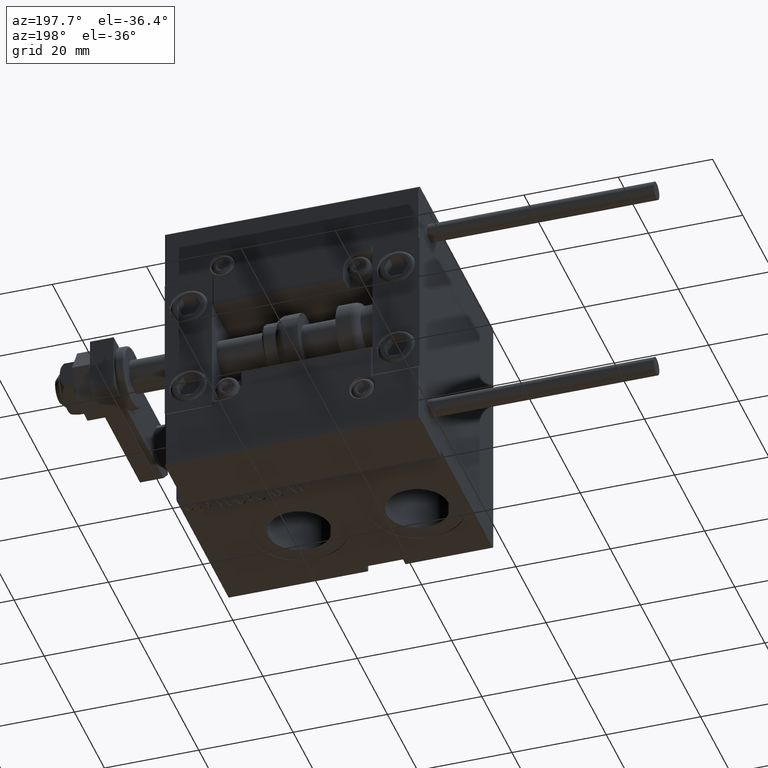
[diagram: clean part render]
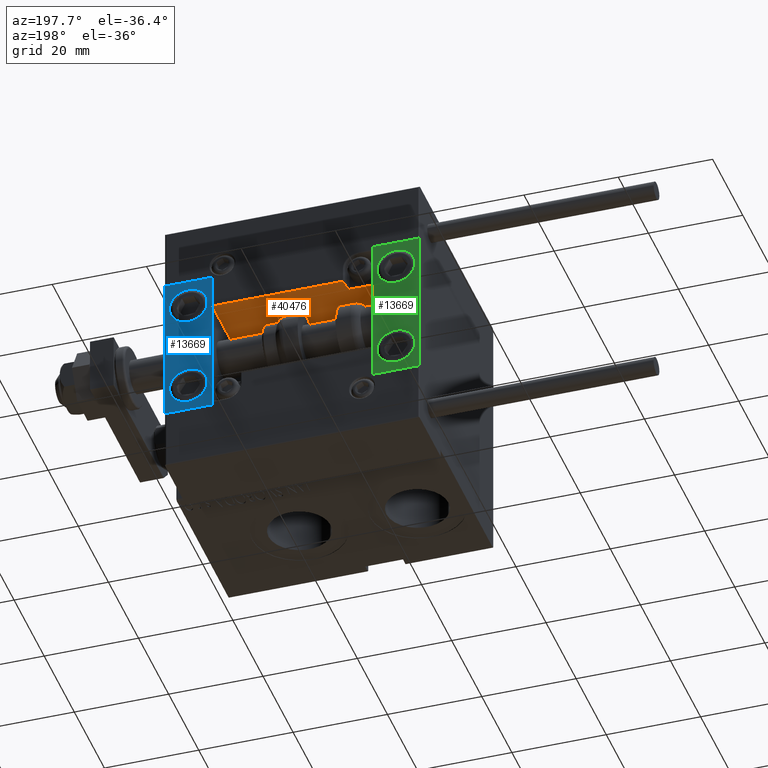
[diagram: same view with three faces highlighted in distinct colors, each labeled with its STEP entity id]
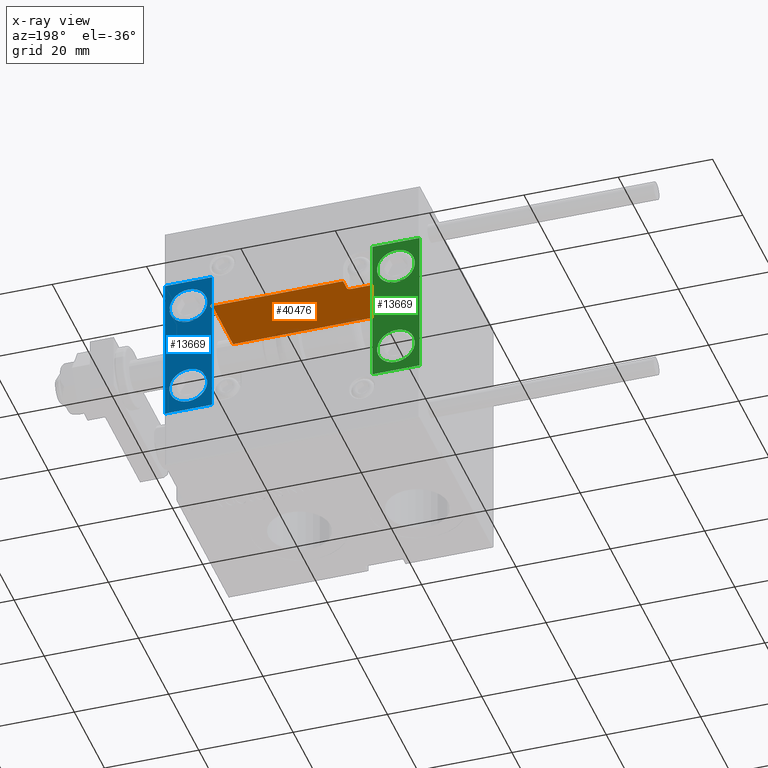
[diagram: x-ray of the same camera — body ghosted, the three highlighted faces saturated]
A machine part, auxiliary view with three faces highlighted in distinct colors.
The next image is the same camera in x-ray (body ghosted, the three faces saturated) — at least one of them is partly hidden behind the body in this view.
Their STEP definitions:

[orange] entity #40476 — the highlighted planar face has unit normal (0, 0, 1).
#1806 = VECTOR ( 'NONE', #6518, 1000.000000000000000 ) ;
#1906 = DIRECTION ( 'NONE',  ( 0.000000000000000000, 1.000000000000000000, 0.000000000000000000 ) ) ;
#2160 = DIRECTION ( 'NONE',  ( 0.000000000000000000, -0.000000000000000000, 1.000000000000000000 ) ) ;
#2263 = DIRECTION ( 'NONE',  ( 1.000000000000000000, 0.000000000000000000, 0.000000000000000000 ) ) ;
#2760 = ORIENTED_EDGE ( 'NONE', *, *, #41453, .T. ) ;
#2810 = VERTEX_POINT ( 'NONE', #21697 ) ;
#3369 = VERTEX_POINT ( 'NONE', #32741 ) ;
#4311 = VERTEX_POINT ( 'NONE', #23651 ) ;
#4525 = EDGE_LOOP ( 'NONE', ( #19405, #13499, #44185, #2760, #48496, #20968, #28226 ) ) ;
#5078 = EDGE_CURVE ( 'NONE', #40596, #3369, #9373, .T. ) ;
#6518 = DIRECTION ( 'NONE',  ( -1.000000000000000000, 0.000000000000000000, -0.000000000000000000 ) ) ;
#7000 = LINE ( 'NONE', #10791, #48398 ) ;
#7226 = CARTESIAN_POINT ( 'NONE',  ( 11.00000000000000000, 3.252606517456513302E-15, 10.69999999999999929 ) ) ;
#8915 = VECTOR ( 'NONE', #26190, 1000.000000000000000 ) ;
#9373 = LINE ( 'NONE', #17695, #17749 ) ;
#9477 = EDGE_CURVE ( 'NONE', #25032, #27238, #34273, .T. ) ;
#9783 = CARTESIAN_POINT ( 'NONE',  ( 11.29999999999999893, 3.252606517456513302E-15, 11.29999999999999893 ) ) ;
#10791 = CARTESIAN_POINT ( 'NONE',  ( 16.99999999999999289, 3.252606517456513302E-15, 14.00000000000000000 ) ) ;
#10835 = AXIS2_PLACEMENT_3D ( 'NONE', #9783, #47429, #40614 ) ;
#12221 = LINE ( 'NONE', #43534, #33751 ) ;
#13030 = PLANE ( 'NONE',  #27257 ) ;
#13358 = EDGE_CURVE ( 'NONE', #4311, #40596, #34072, .T. ) ;
#13499 = ORIENTED_EDGE ( 'NONE', *, *, #9477, .T. ) ;
#14105 = CARTESIAN_POINT ( 'NONE',  ( -16.99999999999999289, 3.252606517456513302E-15, 13.70000000000000107 ) ) ;
#16805 = CARTESIAN_POINT ( 'NONE',  ( 16.99999999999999289, 3.252606517456513302E-15, 0.000000000000000000 ) ) ;
#17056 = CARTESIAN_POINT ( 'NONE',  ( -16.99999999999999289, 3.252606517456513302E-15, 14.00000000000000000 ) ) ;
#17695 = CARTESIAN_POINT ( 'NONE',  ( -16.99999999999999289, 3.252606517456513302E-15, 14.00000000000000000 ) ) ;
#17749 = VECTOR ( 'NONE', #32633, 1000.000000000000000 ) ;
#19405 = ORIENTED_EDGE ( 'NONE', *, *, #48740, .F. ) ;
#20968 = ORIENTED_EDGE ( 'NONE', *, *, #5078, .T. ) ;
#21312 = CIRCLE ( 'NONE', #10835, 0.5999999999999998668 ) ;
#21697 = CARTESIAN_POINT ( 'NONE',  ( 10.70000000000000107, 3.252606517456513302E-15, 11.29999999999999893 ) ) ;
#22895 = DIRECTION ( 'NONE',  ( -0.000000000000000000, -0.000000000000000000, -1.000000000000000000 ) ) ;
#23651 = CARTESIAN_POINT ( 'NONE',  ( 10.70000000000000107, 3.252606517456513302E-15, 13.70000000000000107 ) ) ;
#23714 = EDGE_CURVE ( 'NONE', #3369, #49734, #37144, .T. ) ;
#25032 = VERTEX_POINT ( 'NONE', #32409 ) ;
#26190 = DIRECTION ( 'NONE',  ( -1.000000000000000000, 0.000000000000000000, -0.000000000000000000 ) ) ;
#27238 = VERTEX_POINT ( 'NONE', #45217 ) ;
#27257 = AXIS2_PLACEMENT_3D ( 'NONE', #17056, #1906, #2160 ) ;
#28226 = ORIENTED_EDGE ( 'NONE', *, *, #23714, .T. ) ;
#28704 = CARTESIAN_POINT ( 'NONE',  ( -16.99999999999999289, 3.252606517456513302E-15, 13.70000000000000107 ) ) ;
#28957 = FACE_OUTER_BOUND ( 'NONE', #4525, .T. ) ;
#32409 = CARTESIAN_POINT ( 'NONE',  ( 16.99999999999999289, 3.252606517456513302E-15, 10.69999999999999929 ) ) ;
#32633 = DIRECTION ( 'NONE',  ( -0.000000000000000000, -0.000000000000000000, -1.000000000000000000 ) ) ;
#32741 = CARTESIAN_POINT ( 'NONE',  ( -16.99999999999999289, 3.252606517456513302E-15, 0.000000000000000000 ) ) ;
#32794 = EDGE_CURVE ( 'NONE', #2810, #27238, #21312, .T. ) ;
#33751 = VECTOR ( 'NONE', #39009, 1000.000000000000000 ) ;
#34072 = LINE ( 'NONE', #14105, #1806 ) ;
#34273 = LINE ( 'NONE', #7226, #8915 ) ;
#36888 = CARTESIAN_POINT ( 'NONE',  ( -16.99999999999999289, 3.252606517456513302E-15, 0.000000000000000000 ) ) ;
#37144 = LINE ( 'NONE', #36888, #48831 ) ;
#39009 = DIRECTION ( 'NONE',  ( 0.000000000000000000, -0.000000000000000000, 1.000000000000000000 ) ) ;
#40476 = ADVANCED_FACE ( 'NONE', ( #28957 ), #13030, .F. ) ;
#40596 = VERTEX_POINT ( 'NONE', #28704 ) ;
#40614 = DIRECTION ( 'NONE',  ( 0.000000000000000000, 0.000000000000000000, 1.000000000000000000 ) ) ;
#41453 = EDGE_CURVE ( 'NONE', #2810, #4311, #12221, .T. ) ;
#43534 = CARTESIAN_POINT ( 'NONE',  ( 10.70000000000000107, 3.252606517456513302E-15, 14.00000000000000000 ) ) ;
#44185 = ORIENTED_EDGE ( 'NONE', *, *, #32794, .F. ) ;
#45217 = CARTESIAN_POINT ( 'NONE',  ( 11.29999999999999893, 3.252606517456513302E-15, 10.69999999999999929 ) ) ;
#47429 = DIRECTION ( 'NONE',  ( -0.000000000000000000, -1.000000000000000000, -0.000000000000000000 ) ) ;
#48398 = VECTOR ( 'NONE', #22895, 1000.000000000000000 ) ;
#48496 = ORIENTED_EDGE ( 'NONE', *, *, #13358, .T. ) ;
#48740 = EDGE_CURVE ( 'NONE', #25032, #49734, #7000, .T. ) ;
#48831 = VECTOR ( 'NONE', #2263, 1000.000000000000000 ) ;
#49734 = VERTEX_POINT ( 'NONE', #16805 ) ;

[blue] entity #13669 — the highlighted planar face has unit normal (0, 1, 0).
#4 = CARTESIAN_POINT ( 'NONE',  ( 0.000000000000000000, 7.000000000000000000, 15.99999999999999289 ) ) ;
#50 = CIRCLE ( 'NONE', #44518, 4.000000000000000000 ) ;
#173 = CARTESIAN_POINT ( 'NONE',  ( 5.000000000000000888, 7.000000000000000888, 14.00000000000000178 ) ) ;
#357 = DIRECTION ( 'NONE',  ( 0.000000000000000000, 0.000000000000000000, 1.000000000000000000 ) ) ;
#768 = CARTESIAN_POINT ( 'NONE',  ( 5.000000000000000888, 7.000000000000000888, 10.00000000000000178 ) ) ;
#1757 = DIRECTION ( 'NONE',  ( 0.000000000000000000, 0.000000000000000000, 1.000000000000000000 ) ) ;
#2611 = AXIS2_PLACEMENT_3D ( 'NONE', #31447, #43538, #357 ) ;
#2922 = DIRECTION ( 'NONE',  ( -0.000000000000000000, 1.000000000000000000, 0.000000000000000000 ) ) ;
#3080 = VECTOR ( 'NONE', #29892, 1000.000000000000000 ) ;
#6151 = VERTEX_POINT ( 'NONE', #18947 ) ;
#7486 = EDGE_CURVE ( 'NONE', #46556, #38283, #24433, .T. ) ;
#8076 = EDGE_LOOP ( 'NONE', ( #18097, #17378 ) ) ;
#8689 = EDGE_CURVE ( 'NONE', #40935, #49579, #50, .T. ) ;
#9624 = EDGE_CURVE ( 'NONE', #6151, #38494, #37994, .T. ) ;
#9840 = EDGE_LOOP ( 'NONE', ( #22632, #32894, #47703, #46724 ) ) ;
#10226 = LINE ( 'NONE', #33484, #49580 ) ;
#11393 = EDGE_LOOP ( 'NONE', ( #33661, #44831 ) ) ;
#11512 = DIRECTION ( 'NONE',  ( 0.000000000000000000, 0.000000000000000000, 1.000000000000000000 ) ) ;
#12256 = DIRECTION ( 'NONE',  ( 0.000000000000000000, 1.000000000000000000, -6.065466699219605527E-17 ) ) ;
#12873 = EDGE_CURVE ( 'NONE', #38494, #6151, #37320, .T. ) ;
#13669 = ADVANCED_FACE ( 'NONE', ( #34009, #37056, #22102 ), #48407, .T. ) ;
#13823 = VECTOR ( 'NONE', #43131, 1000.000000000000000 ) ;
#17378 = ORIENTED_EDGE ( 'NONE', *, *, #9624, .F. ) ;
#18097 = ORIENTED_EDGE ( 'NONE', *, *, #12873, .F. ) ;
#18317 = DIRECTION ( 'NONE',  ( 0.000000000000000000, -0.000000000000000000, 1.000000000000000000 ) ) ;
#18947 = CARTESIAN_POINT ( 'NONE',  ( 5.000000000000001776, 6.999999999999999112, -14.00000000000000178 ) ) ;
#18963 = DIRECTION ( 'NONE',  ( 0.000000000000000000, 0.000000000000000000, -1.000000000000000000 ) ) ;
#19545 = AXIS2_PLACEMENT_3D ( 'NONE', #48652, #2922, #18317 ) ;
#20947 = DIRECTION ( 'NONE',  ( 1.848892746611746419E-32, -1.000000000000000000, 6.616381192988677562E-17 ) ) ;
#22102 = FACE_BOUND ( 'NONE', #11393, .T. ) ;
#22134 = EDGE_CURVE ( 'NONE', #38283, #34694, #10226, .T. ) ;
#22431 = EDGE_CURVE ( 'NONE', #37664, #34694, #27069, .T. ) ;
#22632 = ORIENTED_EDGE ( 'NONE', *, *, #22431, .F. ) ;
#23028 = LINE ( 'NONE', #49561, #3080 ) ;
#23601 = EDGE_CURVE ( 'NONE', #49579, #40935, #23803, .T. ) ;
#23803 = CIRCLE ( 'NONE', #47197, 4.000000000000000000 ) ;
#24433 = LINE ( 'NONE', #28232, #13823 ) ;
#25385 = DIRECTION ( 'NONE',  ( -1.000000000000000000, -0.000000000000000000, -0.000000000000000000 ) ) ;
#25858 = CARTESIAN_POINT ( 'NONE',  ( 5.000000000000001776, 7.000000000000000888, 6.000000000000000888 ) ) ;
#27069 = LINE ( 'NONE', #38436, #27818 ) ;
#27682 = DIRECTION ( 'NONE',  ( 0.000000000000000000, 0.000000000000000000, 1.000000000000000000 ) ) ;
#27818 = VECTOR ( 'NONE', #18963, 1000.000000000000000 ) ;
#27918 = CARTESIAN_POINT ( 'NONE',  ( 10.00000000000000000, 7.000000000000000000, -16.00000000000000711 ) ) ;
#28232 = CARTESIAN_POINT ( 'NONE',  ( 10.00000000000000000, 7.000000000000000000, 15.99999999999999289 ) ) ;
#29892 = DIRECTION ( 'NONE',  ( -1.000000000000000000, -0.000000000000000000, -0.000000000000000000 ) ) ;
#30968 = DIRECTION ( 'NONE',  ( 1.848892746611746419E-32, -1.000000000000000000, 6.616381192988677562E-17 ) ) ;
#31447 = CARTESIAN_POINT ( 'NONE',  ( 5.000000000000000888, 6.999999999999999112, -10.00000000000000178 ) ) ;
#32894 = ORIENTED_EDGE ( 'NONE', *, *, #44459, .F. ) ;
#33484 = CARTESIAN_POINT ( 'NONE',  ( 10.00000000000000000, 7.000000000000000000, -16.00000000000000711 ) ) ;
#33661 = ORIENTED_EDGE ( 'NONE', *, *, #23601, .T. ) ;
#34009 = FACE_OUTER_BOUND ( 'NONE', #9840, .T. ) ;
#34694 = VERTEX_POINT ( 'NONE', #37410 ) ;
#36233 = CARTESIAN_POINT ( 'NONE',  ( 10.00000000000000000, 7.000000000000000000, 15.99999999999999289 ) ) ;
#37056 = FACE_BOUND ( 'NONE', #8076, .T. ) ;
#37320 = CIRCLE ( 'NONE', #2611, 4.000000000000000888 ) ;
#37410 = CARTESIAN_POINT ( 'NONE',  ( 0.000000000000000000, 7.000000000000000000, -16.00000000000000711 ) ) ;
#37664 = VERTEX_POINT ( 'NONE', #4 ) ;
#37743 = CARTESIAN_POINT ( 'NONE',  ( 5.000000000000000888, 6.999999999999999112, -6.000000000000000888 ) ) ;
#37994 = CIRCLE ( 'NONE', #40408, 4.000000000000000888 ) ;
#38283 = VERTEX_POINT ( 'NONE', #27918 ) ;
#38436 = CARTESIAN_POINT ( 'NONE',  ( 0.000000000000000000, 7.000000000000000000, 15.99999999999999289 ) ) ;
#38494 = VERTEX_POINT ( 'NONE', #37743 ) ;
#40408 = AXIS2_PLACEMENT_3D ( 'NONE', #46861, #12256, #27682 ) ;
#40935 = VERTEX_POINT ( 'NONE', #25858 ) ;
#43131 = DIRECTION ( 'NONE',  ( 0.000000000000000000, 0.000000000000000000, -1.000000000000000000 ) ) ;
#43538 = DIRECTION ( 'NONE',  ( 0.000000000000000000, 1.000000000000000000, -6.065466699219605527E-17 ) ) ;
#44459 = EDGE_CURVE ( 'NONE', #46556, #37664, #23028, .T. ) ;
#44518 = AXIS2_PLACEMENT_3D ( 'NONE', #46114, #30968, #11512 ) ;
#44831 = ORIENTED_EDGE ( 'NONE', *, *, #8689, .T. ) ;
#46114 = CARTESIAN_POINT ( 'NONE',  ( 5.000000000000000888, 7.000000000000000888, 10.00000000000000178 ) ) ;
#46556 = VERTEX_POINT ( 'NONE', #36233 ) ;
#46724 = ORIENTED_EDGE ( 'NONE', *, *, #22134, .T. ) ;
#46861 = CARTESIAN_POINT ( 'NONE',  ( 5.000000000000000888, 6.999999999999999112, -10.00000000000000178 ) ) ;
#47197 = AXIS2_PLACEMENT_3D ( 'NONE', #768, #20947, #1757 ) ;
#47703 = ORIENTED_EDGE ( 'NONE', *, *, #7486, .T. ) ;
#48407 = PLANE ( 'NONE',  #19545 ) ;
#48652 = CARTESIAN_POINT ( 'NONE',  ( 10.00000000000000000, 7.000000000000000000, 15.99999999999999289 ) ) ;
#49561 = CARTESIAN_POINT ( 'NONE',  ( 10.00000000000000000, 7.000000000000000000, 15.99999999999999289 ) ) ;
#49579 = VERTEX_POINT ( 'NONE', #173 ) ;
#49580 = VECTOR ( 'NONE', #25385, 1000.000000000000000 ) ;

[green] entity #13669 — the highlighted planar face has unit normal (-0, 1, -0).
#4 = CARTESIAN_POINT ( 'NONE',  ( 0.000000000000000000, 7.000000000000000000, 15.99999999999999289 ) ) ;
#50 = CIRCLE ( 'NONE', #44518, 4.000000000000000000 ) ;
#173 = CARTESIAN_POINT ( 'NONE',  ( 5.000000000000000888, 7.000000000000000888, 14.00000000000000178 ) ) ;
#357 = DIRECTION ( 'NONE',  ( 0.000000000000000000, 0.000000000000000000, 1.000000000000000000 ) ) ;
#768 = CARTESIAN_POINT ( 'NONE',  ( 5.000000000000000888, 7.000000000000000888, 10.00000000000000178 ) ) ;
#1757 = DIRECTION ( 'NONE',  ( 0.000000000000000000, 0.000000000000000000, 1.000000000000000000 ) ) ;
#2611 = AXIS2_PLACEMENT_3D ( 'NONE', #31447, #43538, #357 ) ;
#2922 = DIRECTION ( 'NONE',  ( -0.000000000000000000, 1.000000000000000000, 0.000000000000000000 ) ) ;
#3080 = VECTOR ( 'NONE', #29892, 1000.000000000000000 ) ;
#6151 = VERTEX_POINT ( 'NONE', #18947 ) ;
#7486 = EDGE_CURVE ( 'NONE', #46556, #38283, #24433, .T. ) ;
#8076 = EDGE_LOOP ( 'NONE', ( #18097, #17378 ) ) ;
#8689 = EDGE_CURVE ( 'NONE', #40935, #49579, #50, .T. ) ;
#9624 = EDGE_CURVE ( 'NONE', #6151, #38494, #37994, .T. ) ;
#9840 = EDGE_LOOP ( 'NONE', ( #22632, #32894, #47703, #46724 ) ) ;
#10226 = LINE ( 'NONE', #33484, #49580 ) ;
#11393 = EDGE_LOOP ( 'NONE', ( #33661, #44831 ) ) ;
#11512 = DIRECTION ( 'NONE',  ( 0.000000000000000000, 0.000000000000000000, 1.000000000000000000 ) ) ;
#12256 = DIRECTION ( 'NONE',  ( 0.000000000000000000, 1.000000000000000000, -6.065466699219605527E-17 ) ) ;
#12873 = EDGE_CURVE ( 'NONE', #38494, #6151, #37320, .T. ) ;
#13669 = ADVANCED_FACE ( 'NONE', ( #34009, #37056, #22102 ), #48407, .T. ) ;
#13823 = VECTOR ( 'NONE', #43131, 1000.000000000000000 ) ;
#17378 = ORIENTED_EDGE ( 'NONE', *, *, #9624, .F. ) ;
#18097 = ORIENTED_EDGE ( 'NONE', *, *, #12873, .F. ) ;
#18317 = DIRECTION ( 'NONE',  ( 0.000000000000000000, -0.000000000000000000, 1.000000000000000000 ) ) ;
#18947 = CARTESIAN_POINT ( 'NONE',  ( 5.000000000000001776, 6.999999999999999112, -14.00000000000000178 ) ) ;
#18963 = DIRECTION ( 'NONE',  ( 0.000000000000000000, 0.000000000000000000, -1.000000000000000000 ) ) ;
#19545 = AXIS2_PLACEMENT_3D ( 'NONE', #48652, #2922, #18317 ) ;
#20947 = DIRECTION ( 'NONE',  ( 1.848892746611746419E-32, -1.000000000000000000, 6.616381192988677562E-17 ) ) ;
#22102 = FACE_BOUND ( 'NONE', #11393, .T. ) ;
#22134 = EDGE_CURVE ( 'NONE', #38283, #34694, #10226, .T. ) ;
#22431 = EDGE_CURVE ( 'NONE', #37664, #34694, #27069, .T. ) ;
#22632 = ORIENTED_EDGE ( 'NONE', *, *, #22431, .F. ) ;
#23028 = LINE ( 'NONE', #49561, #3080 ) ;
#23601 = EDGE_CURVE ( 'NONE', #49579, #40935, #23803, .T. ) ;
#23803 = CIRCLE ( 'NONE', #47197, 4.000000000000000000 ) ;
#24433 = LINE ( 'NONE', #28232, #13823 ) ;
#25385 = DIRECTION ( 'NONE',  ( -1.000000000000000000, -0.000000000000000000, -0.000000000000000000 ) ) ;
#25858 = CARTESIAN_POINT ( 'NONE',  ( 5.000000000000001776, 7.000000000000000888, 6.000000000000000888 ) ) ;
#27069 = LINE ( 'NONE', #38436, #27818 ) ;
#27682 = DIRECTION ( 'NONE',  ( 0.000000000000000000, 0.000000000000000000, 1.000000000000000000 ) ) ;
#27818 = VECTOR ( 'NONE', #18963, 1000.000000000000000 ) ;
#27918 = CARTESIAN_POINT ( 'NONE',  ( 10.00000000000000000, 7.000000000000000000, -16.00000000000000711 ) ) ;
#28232 = CARTESIAN_POINT ( 'NONE',  ( 10.00000000000000000, 7.000000000000000000, 15.99999999999999289 ) ) ;
#29892 = DIRECTION ( 'NONE',  ( -1.000000000000000000, -0.000000000000000000, -0.000000000000000000 ) ) ;
#30968 = DIRECTION ( 'NONE',  ( 1.848892746611746419E-32, -1.000000000000000000, 6.616381192988677562E-17 ) ) ;
#31447 = CARTESIAN_POINT ( 'NONE',  ( 5.000000000000000888, 6.999999999999999112, -10.00000000000000178 ) ) ;
#32894 = ORIENTED_EDGE ( 'NONE', *, *, #44459, .F. ) ;
#33484 = CARTESIAN_POINT ( 'NONE',  ( 10.00000000000000000, 7.000000000000000000, -16.00000000000000711 ) ) ;
#33661 = ORIENTED_EDGE ( 'NONE', *, *, #23601, .T. ) ;
#34009 = FACE_OUTER_BOUND ( 'NONE', #9840, .T. ) ;
#34694 = VERTEX_POINT ( 'NONE', #37410 ) ;
#36233 = CARTESIAN_POINT ( 'NONE',  ( 10.00000000000000000, 7.000000000000000000, 15.99999999999999289 ) ) ;
#37056 = FACE_BOUND ( 'NONE', #8076, .T. ) ;
#37320 = CIRCLE ( 'NONE', #2611, 4.000000000000000888 ) ;
#37410 = CARTESIAN_POINT ( 'NONE',  ( 0.000000000000000000, 7.000000000000000000, -16.00000000000000711 ) ) ;
#37664 = VERTEX_POINT ( 'NONE', #4 ) ;
#37743 = CARTESIAN_POINT ( 'NONE',  ( 5.000000000000000888, 6.999999999999999112, -6.000000000000000888 ) ) ;
#37994 = CIRCLE ( 'NONE', #40408, 4.000000000000000888 ) ;
#38283 = VERTEX_POINT ( 'NONE', #27918 ) ;
#38436 = CARTESIAN_POINT ( 'NONE',  ( 0.000000000000000000, 7.000000000000000000, 15.99999999999999289 ) ) ;
#38494 = VERTEX_POINT ( 'NONE', #37743 ) ;
#40408 = AXIS2_PLACEMENT_3D ( 'NONE', #46861, #12256, #27682 ) ;
#40935 = VERTEX_POINT ( 'NONE', #25858 ) ;
#43131 = DIRECTION ( 'NONE',  ( 0.000000000000000000, 0.000000000000000000, -1.000000000000000000 ) ) ;
#43538 = DIRECTION ( 'NONE',  ( 0.000000000000000000, 1.000000000000000000, -6.065466699219605527E-17 ) ) ;
#44459 = EDGE_CURVE ( 'NONE', #46556, #37664, #23028, .T. ) ;
#44518 = AXIS2_PLACEMENT_3D ( 'NONE', #46114, #30968, #11512 ) ;
#44831 = ORIENTED_EDGE ( 'NONE', *, *, #8689, .T. ) ;
#46114 = CARTESIAN_POINT ( 'NONE',  ( 5.000000000000000888, 7.000000000000000888, 10.00000000000000178 ) ) ;
#46556 = VERTEX_POINT ( 'NONE', #36233 ) ;
#46724 = ORIENTED_EDGE ( 'NONE', *, *, #22134, .T. ) ;
#46861 = CARTESIAN_POINT ( 'NONE',  ( 5.000000000000000888, 6.999999999999999112, -10.00000000000000178 ) ) ;
#47197 = AXIS2_PLACEMENT_3D ( 'NONE', #768, #20947, #1757 ) ;
#47703 = ORIENTED_EDGE ( 'NONE', *, *, #7486, .T. ) ;
#48407 = PLANE ( 'NONE',  #19545 ) ;
#48652 = CARTESIAN_POINT ( 'NONE',  ( 10.00000000000000000, 7.000000000000000000, 15.99999999999999289 ) ) ;
#49561 = CARTESIAN_POINT ( 'NONE',  ( 10.00000000000000000, 7.000000000000000000, 15.99999999999999289 ) ) ;
#49579 = VERTEX_POINT ( 'NONE', #173 ) ;
#49580 = VECTOR ( 'NONE', #25385, 1000.000000000000000 ) ;